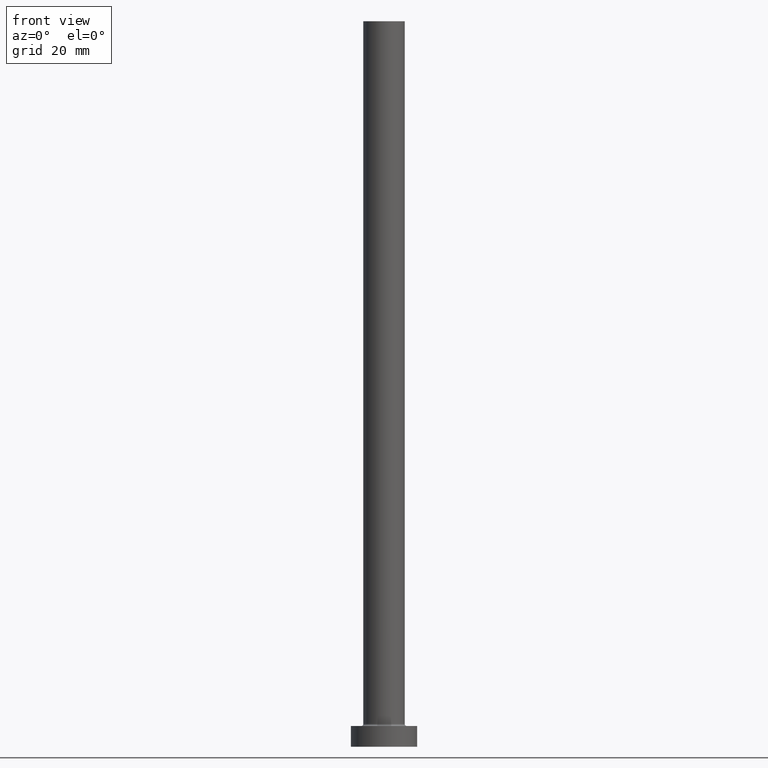
[diagram: clean part render]
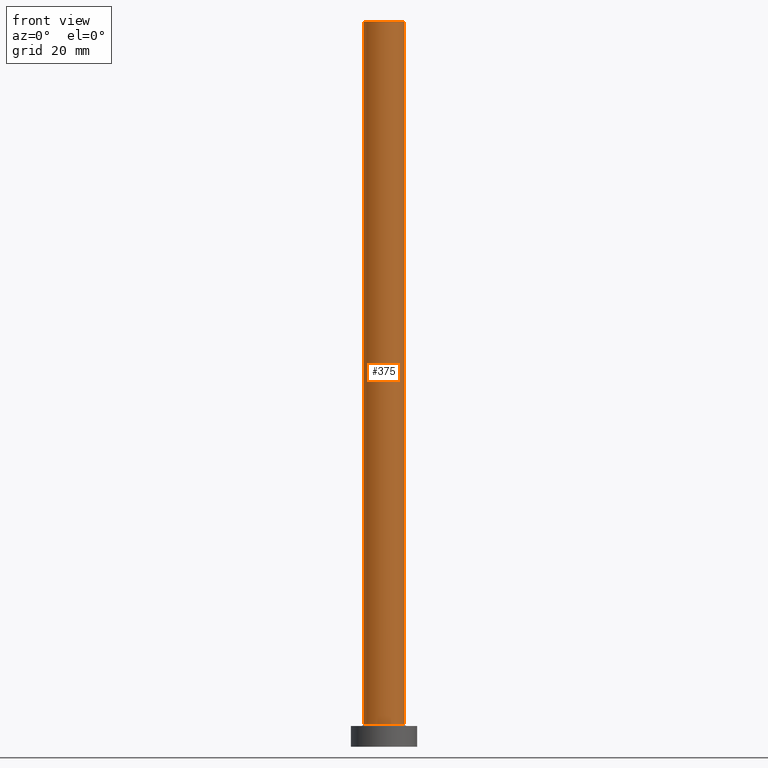
[diagram: same view with one face highlighted and labeled with its STEP entity id]
A machine part, front view. The second image highlights one B-rep face of the part: STEP entity #375.
In plain terms, the highlighted cylindrical surface (edge-blend (fillet) strip) has radius 5 mm, axis along (-0, -0, -1).
Its self-contained STEP definition (entity closure, byte-faithful):
#21 = CARTESIAN_POINT ( 'NONE',  ( 5.000000000000000000, 6.123233995736766282E-16, 175.0000000000000284 ) ) ;
#45 = CARTESIAN_POINT ( 'NONE',  ( -5.000000000000000000, 0.000000000000000000, 175.0000000000000284 ) ) ;
#60 = CARTESIAN_POINT ( 'NONE',  ( -5.000000000000000000, 0.000000000000000000, 175.0000000000000284 ) ) ;
#68 = FACE_OUTER_BOUND ( 'NONE', #406, .T. ) ;
#74 = AXIS2_PLACEMENT_3D ( 'NONE', #206, #424, #180 ) ;
#86 = ORIENTED_EDGE ( 'NONE', *, *, #209, .T. ) ;
#87 = CARTESIAN_POINT ( 'NONE',  ( 0.000000000000000000, 0.000000000000000000, 5.500000000000005329 ) ) ;
#105 = ORIENTED_EDGE ( 'NONE', *, *, #319, .F. ) ;
#115 = DIRECTION ( 'NONE',  ( -0.000000000000000000, -0.000000000000000000, -1.000000000000000000 ) ) ;
#132 = CIRCLE ( 'NONE', #201, 5.000000000000000000 ) ;
#137 = CARTESIAN_POINT ( 'NONE',  ( 5.000000000000000000, 6.123233995736766282E-16, 5.500000000000005329 ) ) ;
#143 = CARTESIAN_POINT ( 'NONE',  ( -5.000000000000000000, 0.000000000000000000, 5.500000000000005329 ) ) ;
#152 = DIRECTION ( 'NONE',  ( 0.000000000000000000, 0.000000000000000000, 1.000000000000000000 ) ) ;
#159 = VERTEX_POINT ( 'NONE', #143 ) ;
#162 = EDGE_CURVE ( 'NONE', #246, #417, #285, .T. ) ;
#174 = DIRECTION ( 'NONE',  ( 0.000000000000000000, 0.000000000000000000, 1.000000000000000000 ) ) ;
#176 = CYLINDRICAL_SURFACE ( 'NONE', #74, 5.000000000000000000 ) ;
#180 = DIRECTION ( 'NONE',  ( -1.000000000000000000, 0.000000000000000000, 0.000000000000000000 ) ) ;
#198 = DIRECTION ( 'NONE',  ( -0.000000000000000000, -0.000000000000000000, -1.000000000000000000 ) ) ;
#201 = AXIS2_PLACEMENT_3D ( 'NONE', #87, #152, #295 ) ;
#205 = ORIENTED_EDGE ( 'NONE', *, *, #251, .T. ) ;
#206 = CARTESIAN_POINT ( 'NONE',  ( 0.000000000000000000, 0.000000000000000000, 175.0000000000000284 ) ) ;
#209 = EDGE_CURVE ( 'NONE', #159, #417, #132, .T. ) ;
#215 = CARTESIAN_POINT ( 'NONE',  ( 0.000000000000000000, 0.000000000000000000, 175.0000000000000284 ) ) ;
#246 = VERTEX_POINT ( 'NONE', #21 ) ;
#247 = AXIS2_PLACEMENT_3D ( 'NONE', #215, #174, #317 ) ;
#251 = EDGE_CURVE ( 'NONE', #423, #159, #304, .T. ) ;
#285 = LINE ( 'NONE', #427, #436 ) ;
#295 = DIRECTION ( 'NONE',  ( 1.000000000000000000, 0.000000000000000000, 0.000000000000000000 ) ) ;
#304 = LINE ( 'NONE', #60, #351 ) ;
#317 = DIRECTION ( 'NONE',  ( 1.000000000000000000, 0.000000000000000000, 0.000000000000000000 ) ) ;
#319 = EDGE_CURVE ( 'NONE', #423, #246, #398, .T. ) ;
#348 = ORIENTED_EDGE ( 'NONE', *, *, #162, .F. ) ;
#351 = VECTOR ( 'NONE', #198, 1000.000000000000000 ) ;
#375 = ADVANCED_FACE ( 'NONE', ( #68 ), #176, .T. ) ;
#398 = CIRCLE ( 'NONE', #247, 5.000000000000000000 ) ;
#406 = EDGE_LOOP ( 'NONE', ( #348, #105, #205, #86 ) ) ;
#417 = VERTEX_POINT ( 'NONE', #137 ) ;
#423 = VERTEX_POINT ( 'NONE', #45 ) ;
#424 = DIRECTION ( 'NONE',  ( -0.000000000000000000, -0.000000000000000000, -1.000000000000000000 ) ) ;
#427 = CARTESIAN_POINT ( 'NONE',  ( 5.000000000000000000, 6.123233995736766282E-16, 175.0000000000000284 ) ) ;
#436 = VECTOR ( 'NONE', #115, 1000.000000000000000 ) ;